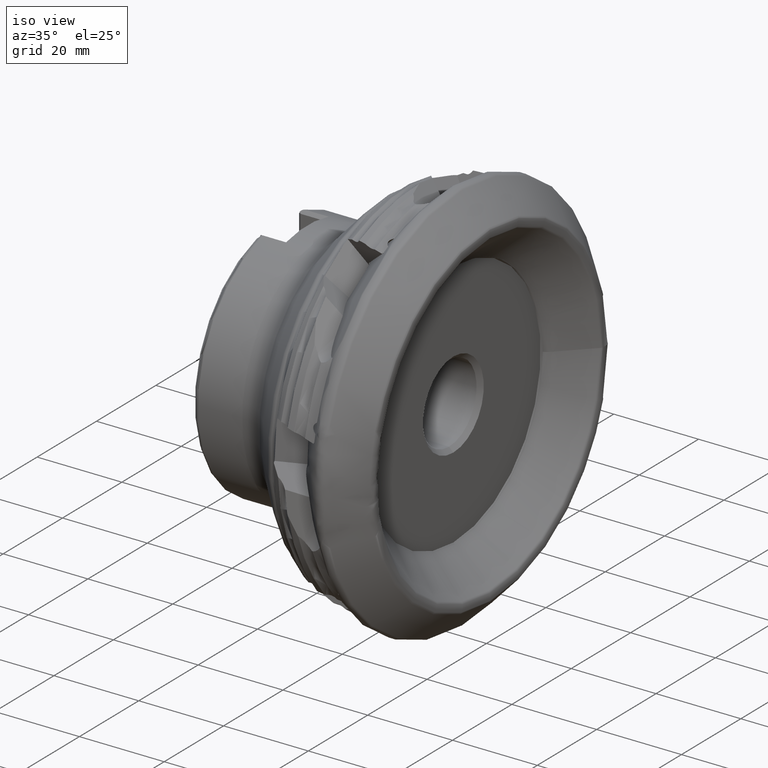
[diagram: clean part render]
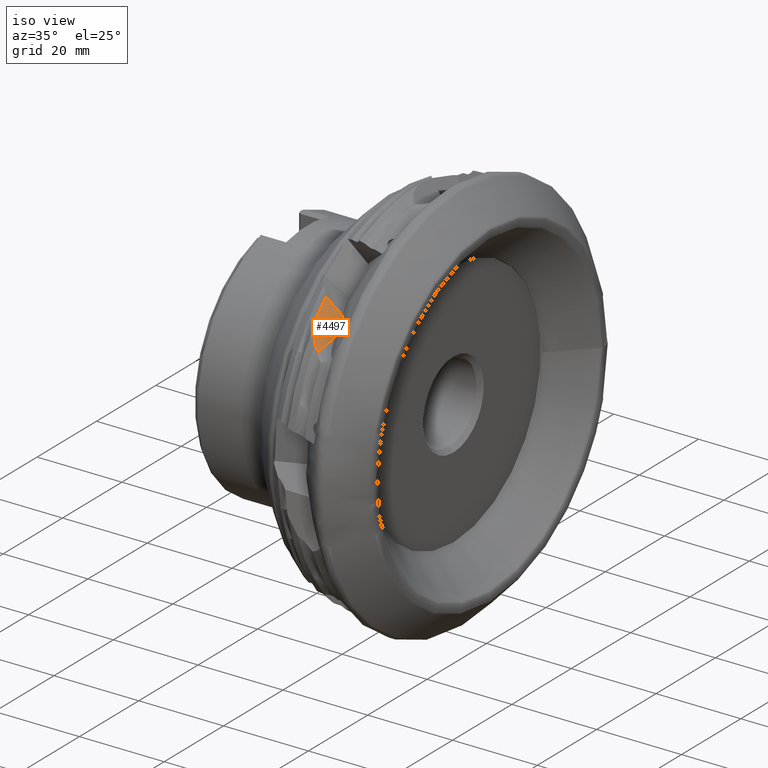
[diagram: same view with one face highlighted and labeled with its STEP entity id]
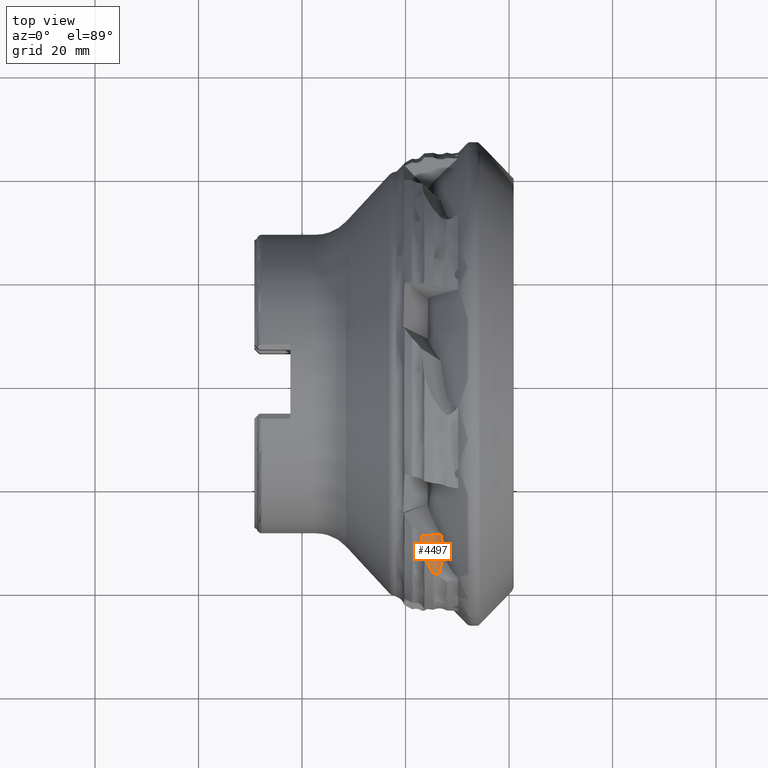
[diagram: same view with one face highlighted and labeled with its STEP entity id]
A machine part, iso view. The second image highlights one B-rep face of the part: STEP entity #4497.
A second angle (top view) of the same face is appended — the face is thin or edge-on in the first view.
In plain terms, the highlighted planar face has unit normal (0.625, -0.4374, 0.6465).
Its self-contained STEP definition (entity closure, byte-faithful):
#17 = CARTESIAN_POINT ( 'NONE',  ( -14.70431692859906800, -36.89718043174780600, 25.22601295954308000 ) ) ;
#57 = CARTESIAN_POINT ( 'NONE',  ( -14.69012621379482500, -36.91680931334895600, 25.19901265877469900 ) ) ;
#130 = VERTEX_POINT ( 'NONE', #4539 ) ;
#134 = CARTESIAN_POINT ( 'NONE',  ( -16.92549106875385000, -29.95614338068239800, 32.06979079807237600 ) ) ;
#165 = EDGE_CURVE ( 'NONE', #9093, #4240, #931, .T. ) ;
#174 = B_SPLINE_CURVE_WITH_KNOTS ( 'NONE', 3,
 ( #3176, #2406, #9527, #4772, #57, #5589 ),
 .UNSPECIFIED., .F., .F.,
 ( 4, 2, 4 ),
 ( 2.661335656021146700E-007, 0.0001087885850925080000, 0.0002173110366194138900 ),
 .UNSPECIFIED. ) ;
#479 = CARTESIAN_POINT ( 'NONE',  ( -14.14591002357139600, -37.06171463025228300, 24.57483950876201100 ) ) ;
#574 = CARTESIAN_POINT ( 'NONE',  ( -16.38691345894515500, -34.00411528059093100, 28.81018359570577700 ) ) ;
#652 = CARTESIAN_POINT ( 'NONE',  ( -16.54232062688115700, -32.93419634837869100, 29.68435179857214500 ) ) ;
#659 = ORIENTED_EDGE ( 'NONE', *, *, #8371, .F. ) ;
#686 = CARTESIAN_POINT ( 'NONE',  ( -16.62006100552388700, -32.33922480402621600, 30.16207672580071600 ) ) ;
#738 = CARTESIAN_POINT ( 'NONE',  ( -13.20149372504055000, -29.52878204459388200, 28.75873160030968700 ) ) ;
#815 = CARTESIAN_POINT ( 'NONE',  ( -16.46027305919351500, -33.65713265077313600, 29.11587958174902000 ) ) ;
#931 = B_SPLINE_CURVE_WITH_KNOTS ( 'NONE', 3,
 ( #6758, #10032, #574, #3152, #815, #7151 ),
 .UNSPECIFIED., .F., .F.,
 ( 4, 2, 4 ),
 ( 6.552635457707524400E-007, 0.0004685511720783451100, 0.0009364470806109193900 ),
 .UNSPECIFIED. ) ;
#1062 = CARTESIAN_POINT ( 'NONE',  ( -13.20149372504055000, -29.52878204459388200, 28.75873160030968700 ) ) ;
#1092 = CARTESIAN_POINT ( 'NONE',  ( -12.53326085121395500, -33.10719727516135400, 25.69148910758266500 ) ) ;
#1276 = CARTESIAN_POINT ( 'NONE',  ( -14.40111339593118000, -36.98285085534087800, 24.87492111507362900 ) ) ;
#1478 = CARTESIAN_POINT ( 'NONE',  ( -16.85357497729648900, -30.55445867046901400, 31.59543413265023700 ) ) ;
#1605 = LINE ( 'NONE', #10167, #5806 ) ;
#1641 = B_SPLINE_CURVE_WITH_KNOTS ( 'NONE', 3,
 ( #3577, #5983, #5208, #479, #6019, #1276, #6815, #2071 ),
 .UNSPECIFIED., .F., .F.,
 ( 4, 2, 2, 4 ),
 ( 0.003871204085548040500, 0.004659401484475888700, 0.005053500183939811100, 0.005447598883403732700 ),
 .UNSPECIFIED. ) ;
#2071 = CARTESIAN_POINT ( 'NONE',  ( -14.59139364541624700, -36.97673376805330700, 25.06301578480888600 ) ) ;
#2327 = B_SPLINE_CURVE_WITH_KNOTS ( 'NONE', 3,
 ( #1062, #8201, #5842, #1092 ),
 .UNSPECIFIED., .F., .F.,
 ( 4, 4 ),
 ( 0.0004457809794278429200, 0.005206301660828173400 ),
 .UNSPECIFIED. ) ;
#2406 = CARTESIAN_POINT ( 'NONE',  ( -14.61855639409331600, -36.97854944914173800, 25.08804717886064500 ) ) ;
#2483 = ORIENTED_EDGE ( 'NONE', *, *, #5233, .F. ) ;
#2557 = EDGE_CURVE ( 'NONE', #3901, #3377, #9421, .T. ) ;
#2754 = PLANE ( 'NONE',  #6614 ) ;
#3152 = CARTESIAN_POINT ( 'NONE',  ( -16.44029410187581800, -33.77563615844949400, 29.01638307274255600 ) ) ;
#3171 = EDGE_CURVE ( 'NONE', #130, #10266, #1641, .T. ) ;
#3176 = CARTESIAN_POINT ( 'NONE',  ( -14.59139364541624700, -36.97673376805330700, 25.06301578480888600 ) ) ;
#3185 = ORIENTED_EDGE ( 'NONE', *, *, #4725, .F. ) ;
#3377 = VERTEX_POINT ( 'NONE', #8794 ) ;
#3539 = CARTESIAN_POINT ( 'NONE',  ( -23.06459579964841900, -73.48621693733908000, 8.551612157756057500 ) ) ;
#3577 = CARTESIAN_POINT ( 'NONE',  ( -13.64869291542276400, -37.38396308624273700, 23.87610972595240700 ) ) ;
#3900 = CARTESIAN_POINT ( 'NONE',  ( -16.92549106875385000, -29.95614338068239800, 32.06979079807237600 ) ) ;
#3901 = VERTEX_POINT ( 'NONE', #134 ) ;
#3930 = CARTESIAN_POINT ( 'NONE',  ( -16.30727318730127000, -34.21286073584801800, 28.59194945902427100 ) ) ;
#4185 = EDGE_LOOP ( 'NONE', ( #7299, #10169, #3185, #6827, #659, #2483, #7901, #6155 ) ) ;
#4240 = VERTEX_POINT ( 'NONE', #7996 ) ;
#4497 = ADVANCED_FACE ( 'NONE', ( #5000 ), #2754, .T. ) ;
#4521 = DIRECTION ( 'NONE',  ( 0.2334453638559059500, 0.8950712310772266400, 0.3799351963060039200 ) ) ;
#4539 = CARTESIAN_POINT ( 'NONE',  ( -13.64869291542276400, -37.38396308624273700, 23.87610972595240700 ) ) ;
#4675 = CARTESIAN_POINT ( 'NONE',  ( -15.68898751263725600, -29.83179077928975800, 30.95852520559147800 ) ) ;
#4725 = EDGE_CURVE ( 'NONE', #4240, #3901, #7995, .T. ) ;
#4772 = CARTESIAN_POINT ( 'NONE',  ( -14.67465038509853900, -36.93502649210064700, 25.17172514216963100 ) ) ;
#5000 = FACE_OUTER_BOUND ( 'NONE', #4185, .T. ) ;
#5208 = CARTESIAN_POINT ( 'NONE',  ( -13.91575411138996000, -37.17713496373591700, 24.27423801165198500 ) ) ;
#5233 = EDGE_CURVE ( 'NONE', #10266, #5828, #174, .T. ) ;
#5483 = CARTESIAN_POINT ( 'NONE',  ( -13.82752342408625300, -29.62066624194491400, 29.30178289748671700 ) ) ;
#5514 = EDGE_CURVE ( 'NONE', #3377, #8175, #2327, .T. ) ;
#5589 = CARTESIAN_POINT ( 'NONE',  ( -14.70431692859906800, -36.89718043174780600, 25.22601295954308000 ) ) ;
#5806 = VECTOR ( 'NONE', #4521, 1000.000000000000100 ) ;
#5828 = VERTEX_POINT ( 'NONE', #17 ) ;
#5842 = CARTESIAN_POINT ( 'NONE',  ( -12.80233119864405600, -31.94468471052199000, 26.73819308837186500 ) ) ;
#5983 = CARTESIAN_POINT ( 'NONE',  ( -13.77846262577356200, -37.27554868958308300, 24.07492130217208600 ) ) ;
#6019 = CARTESIAN_POINT ( 'NONE',  ( -14.22762198032603600, -37.02845607515526200, 24.67633887164549100 ) ) ;
#6155 = ORIENTED_EDGE ( 'NONE', *, *, #8745, .T. ) ;
#6234 = CARTESIAN_POINT ( 'NONE',  ( -16.77557747529401400, -31.14930255759861300, 31.11754700347473000 ) ) ;
#6614 = AXIS2_PLACEMENT_3D ( 'NONE', #3539, #8271, #9898 ) ;
#6758 = CARTESIAN_POINT ( 'NONE',  ( -16.30727318730127000, -34.21286073584801800, 28.59194945902427100 ) ) ;
#6815 = CARTESIAN_POINT ( 'NONE',  ( -14.49213216211467700, -36.97009868114873400, 24.97154296178119600 ) ) ;
#6827 = ORIENTED_EDGE ( 'NONE', *, *, #165, .F. ) ;
#6874 = CARTESIAN_POINT ( 'NONE',  ( -16.30727318730127000, -34.21286073584801800, 28.59194945902427100 ) ) ;
#7015 = CARTESIAN_POINT ( 'NONE',  ( -16.92549106875385000, -29.95614338068239800, 32.06979079807237600 ) ) ;
#7151 = CARTESIAN_POINT ( 'NONE',  ( -16.47416143517241900, -33.53475959987805800, 29.21210615010826200 ) ) ;
#7299 = ORIENTED_EDGE ( 'NONE', *, *, #5514, .F. ) ;
#7885 = CARTESIAN_POINT ( 'NONE',  ( -14.70431692859906800, -36.89718043174780600, 25.22601295954308000 ) ) ;
#7901 = ORIENTED_EDGE ( 'NONE', *, *, #3171, .F. ) ;
#7995 = B_SPLINE_CURVE_WITH_KNOTS ( 'NONE', 3,
 ( #10192, #652, #686, #6234, #1478, #7015 ),
 .UNSPECIFIED., .F., .F.,
 ( 4, 2, 4 ),
 ( 2.250860040525327500E-006, 0.002303169828705391100, 0.004604088797370256700 ),
 .UNSPECIFIED. ) ;
#7996 = CARTESIAN_POINT ( 'NONE',  ( -16.47416143517241900, -33.53475959987805800, 29.21210615010826200 ) ) ;
#8175 = VERTEX_POINT ( 'NONE', #8352 ) ;
#8201 = CARTESIAN_POINT ( 'NONE',  ( -13.02608843996309000, -30.75143625151693200, 27.76188653470589800 ) ) ;
#8271 = DIRECTION ( 'NONE',  ( 0.6250273368635115300, -0.4374444903464669300, 0.6465161606942445600 ) ) ;
#8352 = CARTESIAN_POINT ( 'NONE',  ( -12.53326085121395500, -33.10719727516135400, 25.69148910758266500 ) ) ;
#8371 = EDGE_CURVE ( 'NONE', #5828, #9093, #9299, .T. ) ;
#8644 = CARTESIAN_POINT ( 'NONE',  ( -16.30753372575874100, -29.89506937515391600, 31.51369681771525000 ) ) ;
#8679 = CARTESIAN_POINT ( 'NONE',  ( -15.84951717279287700, -35.15732095701334000, 27.51036946877199800 ) ) ;
#8745 = EDGE_CURVE ( 'NONE', #130, #8175, #1605, .T. ) ;
#8794 = CARTESIAN_POINT ( 'NONE',  ( -13.20149372504055000, -29.52878204459388200, 28.75873160030968700 ) ) ;
#9093 = VERTEX_POINT ( 'NONE', #6874 ) ;
#9299 =( BOUNDED_CURVE ( )  B_SPLINE_CURVE ( 3, ( #7885, #10237, #8679, #3930 ),
 .UNSPECIFIED., .F., .F. ) 
 B_SPLINE_CURVE_WITH_KNOTS ( ( 4, 4 ),
 ( 2.795423754820598900, 2.884371489875842800 ),
 .UNSPECIFIED. ) 
 CURVE ( )  GEOMETRIC_REPRESENTATION_ITEM ( )  RATIONAL_B_SPLINE_CURVE ( ( 1.000000000000000000, 0.9993408003670716200, 0.9993408003670716200, 1.000000000000000000 ) ) 
 REPRESENTATION_ITEM ( '' )  );
#9421 = B_SPLINE_CURVE_WITH_KNOTS ( 'NONE', 3,
 ( #3900, #8644, #4675, #10239, #5483, #738 ),
 .UNSPECIFIED., .F., .F.,
 ( 4, 2, 4 ),
 ( 0.002696613809206907700, 0.005197267537112864800, 0.007697921265018826300 ),
 .UNSPECIFIED. ) ;
#9527 = CARTESIAN_POINT ( 'NONE',  ( -14.63878835753266500, -36.96487249037515000, 25.11686075169562200 ) ) ;
#9898 = DIRECTION ( 'NONE',  ( 0.7189540800803596600, 0.0000000000000000000, -0.6950575736842263800 ) ) ;
#10032 = CARTESIAN_POINT ( 'NONE',  ( -16.35485068398579500, -34.11469697258332400, 28.70436495280115700 ) ) ;
#10167 = CARTESIAN_POINT ( 'NONE',  ( -23.06459579964841900, -73.48621693733908000, 8.551612157756057500 ) ) ;
#10169 = ORIENTED_EDGE ( 'NONE', *, *, #2557, .F. ) ;
#10192 = CARTESIAN_POINT ( 'NONE',  ( -16.47416143517241900, -33.53475959987805800, 29.21210615010826200 ) ) ;
#10201 = CARTESIAN_POINT ( 'NONE',  ( -14.59139364541624700, -36.97673376805330700, 25.06301578480888600 ) ) ;
#10237 = CARTESIAN_POINT ( 'NONE',  ( -15.31484596482811800, -36.05268441224097800, 26.38765053970568500 ) ) ;
#10239 = CARTESIAN_POINT ( 'NONE',  ( -14.44895866407554100, -29.69424031760961200, 29.85278140411215000 ) ) ;
#10266 = VERTEX_POINT ( 'NONE', #10201 ) ;